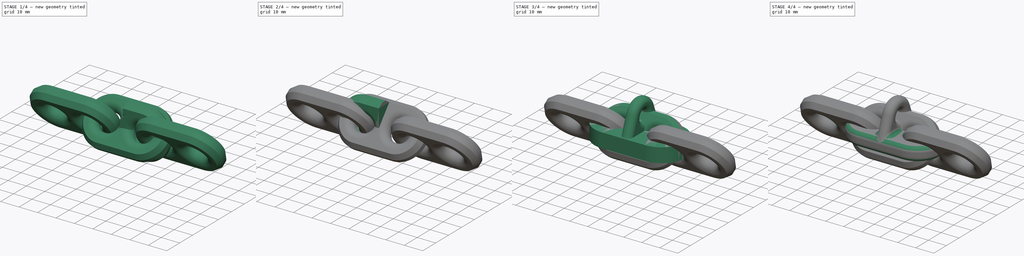
[diagram: build sequence overview — one tinted view per stage of 4, left to right]
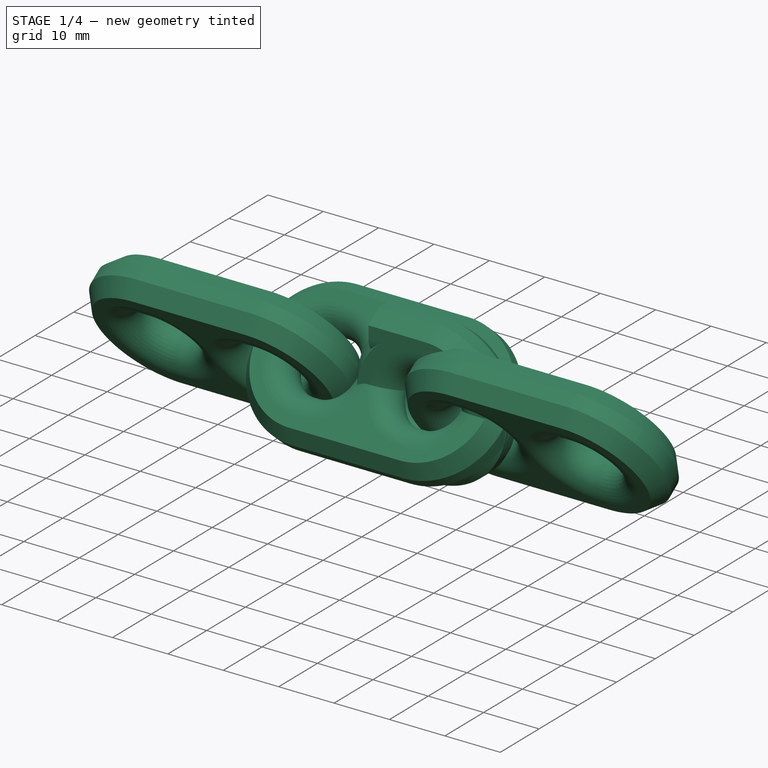
[diagram: stage 1 of 4 — iso view after this stage's code; geometry added in this stage tinted green]
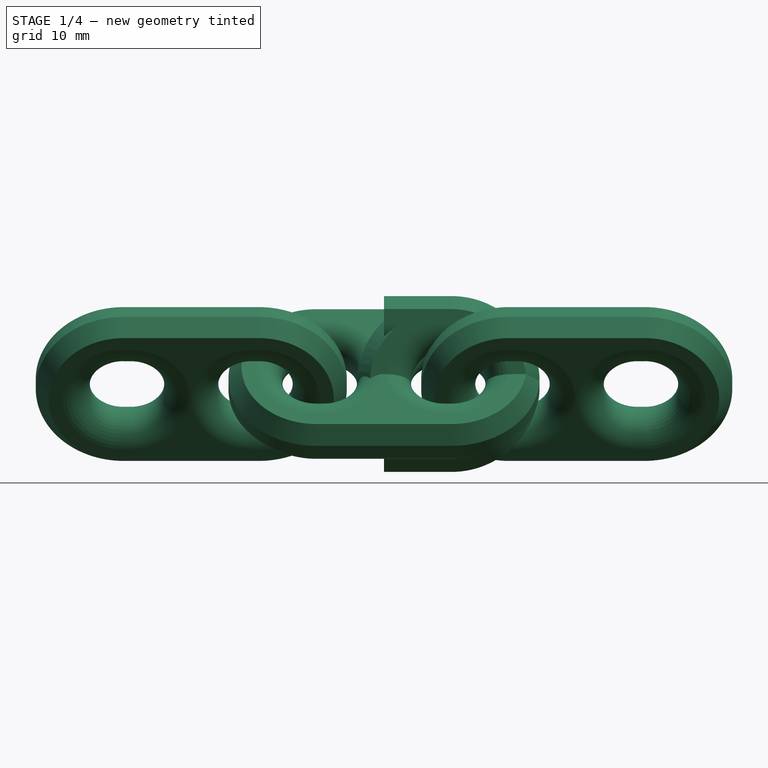
[diagram: stage 1 of 4 — front view after this stage's code; geometry added in this stage tinted green]
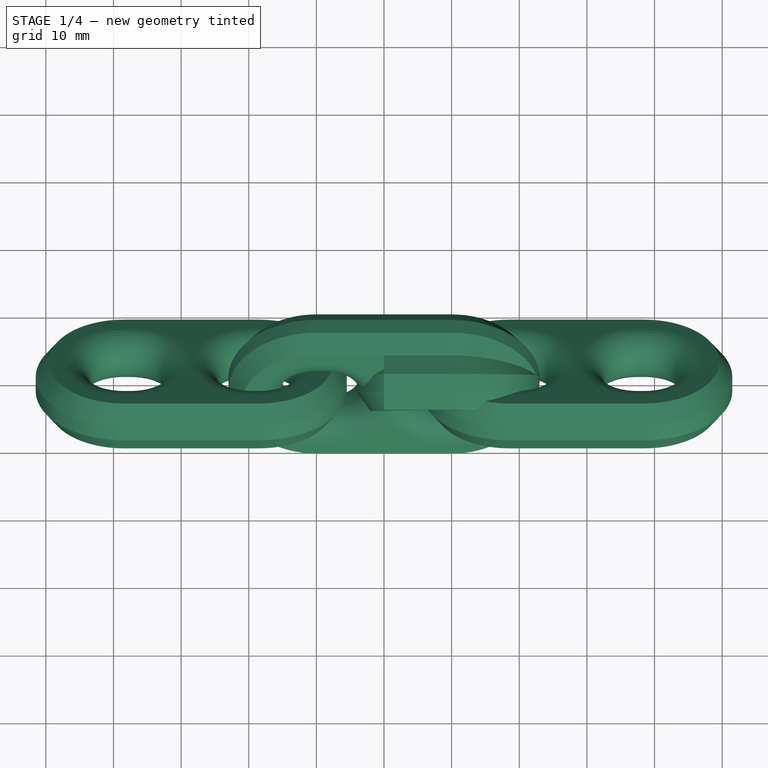
[diagram: stage 1 of 4 — top view after this stage's code; geometry added in this stage tinted green]
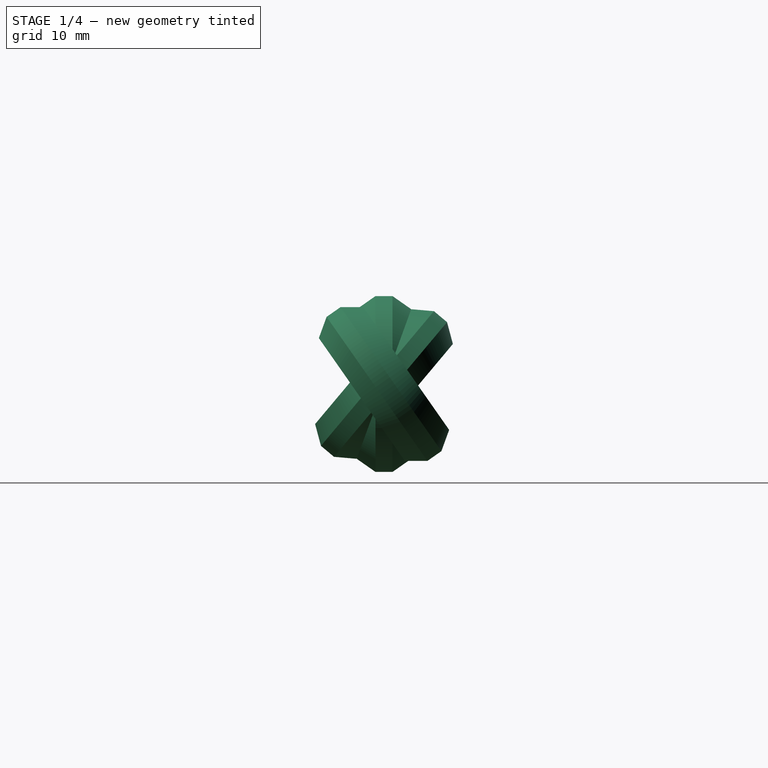
[diagram: stage 1 of 4 — right view after this stage's code; geometry added in this stage tinted green]
FCSTD DOCUMENT  (FreeCAD 0.21R33771 (Git))
Label: _FatChain
License: Creative Commons Attribution 4.0
LicenseURL: https://creativecommons.org/licenses/by/4.0/
objects: Sketcher::SketchObject×8, PartDesign::Pad×3, PartDesign::Body×3, Part::Feature×3, PartDesign::Fillet×2, Part::MultiFuse×2, PartDesign::AdditivePipe×2, Part::Fillet×1, PartDesign::Pocket×1, Part::Mirroring×1, Part::Compound×1
note: 35 computed .brp shape members not serialized (recipe doc carries the construction recipe); baked Part::Feature solids carry a one-line shape summary decoded from their .brp

FEATURE [Sketcher::SketchObject] Sketch015
  FullyConstrained = true
  MapMode = 5
  Placement = pos=(0,0,0) rot=(1,0,0;1.5708rad)
  Support = -> [XZ_Plane005]
  sketch-geometry (3):
    g0: ArcOfCircle CenterX=10 CenterY=0 CenterZ=0 NormalX=0 NormalY=0 NormalZ=1 AngleXU=0 Radius=9 StartAngle=4.71239 EndAngle=7.85398
    g1: LineSegment StartX=0 StartY=9 StartZ=0 EndX=10 EndY=9 EndZ=0
    g2: LineSegment StartX=0 StartY=-9 StartZ=0 EndX=10 EndY=-9 EndZ=0
  constraints (10):
    c: Coincident(g0,g1)
    c: Tangent(g1,g0)
    c: Horizontal(g2)
    c: PointOnObject(g1,g-2)
    c: PointOnObject(g2,g-2)
    c: DistanceX(g-1,g0) = 10
    c: Radius(g0) = 9
    c: Horizontal(g1)
    c: Tangent(g0,g2) = -1.5708
    c: PointOnObject(g0,g-1)
FEATURE [Sketcher::SketchObject] Sketch016
  ExternalGeometry = -> [Sketch015]
  FullyConstrained = true
  MapMode = 5
  Placement = pos=(0,0,0) rot=(0.57735,0.57735,0.57735;2.0944rad)
  Support = -> [YZ_Plane005]
  sketch-geometry (7):
    g0: ArcOfCircle CenterX=0 CenterY=9 CenterZ=0 NormalX=0 NormalY=0 NormalZ=1 AngleXU=0 Radius=4 StartAngle=3.14159 EndAngle=6.28319
    g1: LineSegment StartX=-4 StartY=9 StartZ=0 EndX=-4 EndY=11.0823 EndZ=0
    g2: LineSegment StartX=-1.2612 StartY=13 StartZ=0 EndX=1.2612 EndY=13 EndZ=0
    g3: LineSegment StartX=4 StartY=11.0823 StartZ=0 EndX=4 EndY=9 EndZ=0
    g4: ArcOfCircle CenterX=0 CenterY=9 CenterZ=0 NormalX=0 NormalY=0 NormalZ=1 AngleXU=0 Radius=4 StartAngle=1.5708 EndAngle=3.14159
    g5: LineSegment StartX=-1.2612 StartY=13 StartZ=0 EndX=-4 EndY=11.0823 EndZ=0
    g6: LineSegment StartX=1.2612 StartY=13 StartZ=0 EndX=4 EndY=11.0823 EndZ=0
  constraints (18):
    c: Coincident(g0,g-3)
    c: Tangent(g0,g1) = 1.5708
    c: Horizontal(g2)
    c: Tangent(g3,g0) = 1.5708
    c: Vertical(g3)
    c: Coincident(g4,g0)
    c: Coincident(g4,g0)
    c: Tangent(g4,g2)
    c: Radius(g0) = 4
    c: PointOnObject(g4,g-2)
    c: Coincident(g2,g5)
    c: Coincident(g1,g5)
    c: Coincident(g2,g6)
    c: Coincident(g3,g6)
    c: Symmetric(g3,g1,g-2)
    c: Angle(g5,g6) = 1.91986
    c: Equal(g6,g5)
    c: Tangent(g4,g5)
FEATURE [PartDesign::AdditivePipe] AdditivePipe003
  AuxilleryCurvelinear = true
  AuxillerySpineTangent = false
  Binormal = (0,0,0)
  Mode = 0
  Placement = pos=(0,0,0) rot=(0.57735,0.57735,0.57735;2.0944rad)
  Profile = -> Sketch016
  Refine = true
  Spine = -> Sketch015
  SpineTangent = false
  Transformation = 0
  Transition = 0
FEATURE [Sketcher::SketchObject] Sketch017
  FullyConstrained = true
  MapMode = 5
  Placement = pos=(0,0,0) rot=(1,0,0;1.5708rad)
  Support = -> [XZ_Plane005]
  sketch-geometry (1):
    g0: ArcOfCircle CenterX=9 CenterY=0 CenterZ=0 NormalX=0 NormalY=0 NormalZ=1 AngleXU=0 Radius=9 StartAngle=1.5708 EndAngle=4.71239
  constraints (5):
    c: PointOnObject(g0,g-1)
    c: Radius(g0) = 9
    c: Vertical(g0,g0)
    c: Vertical(g0,g0)
    c: PointOnObject(g-1,g0)
FEATURE [Sketcher::SketchObject] Sketch018
  AttachmentOffset = pos=(0,0,9) rot=(0,0,1;0rad)
  ExternalGeometry = -> [Sketch015]
  FullyConstrained = true
  MapMode = 5
  Placement = pos=(9,-2e-15,2e-15) rot=(0.57735,0.57735,0.57735;2.0944rad)
  Support = -> [YZ_Plane005]
  sketch-geometry (7):
    g0: ArcOfCircle CenterX=0 CenterY=9 CenterZ=0 NormalX=0 NormalY=0 NormalZ=1 AngleXU=0 Radius=4 StartAngle=3.14159 EndAngle=6.28319
    g1: LineSegment StartX=-4 StartY=9 StartZ=0 EndX=-4 EndY=11.0823 EndZ=0
    g2: LineSegment StartX=-1.2612 StartY=13 StartZ=0 EndX=1.2612 EndY=13 EndZ=0
    g3: LineSegment StartX=4 StartY=11.0823 StartZ=0 EndX=4 EndY=9 EndZ=0
    g4: ArcOfCircle CenterX=0 CenterY=9 CenterZ=0 NormalX=0 NormalY=0 NormalZ=1 AngleXU=0 Radius=4 StartAngle=1.5708 EndAngle=3.14159
    g5: LineSegment StartX=-1.2612 StartY=13 StartZ=0 EndX=-4 EndY=11.0823 EndZ=0
    g6: LineSegment StartX=1.2612 StartY=13 StartZ=0 EndX=4 EndY=11.0823 EndZ=0
  constraints (18):
    c: Coincident(g0,g-3)
    c: Tangent(g0,g1) = 1.5708
    c: Horizontal(g2)
    c: Tangent(g3,g0) = 1.5708
    c: Vertical(g3)
    c: Coincident(g4,g0)
    c: Coincident(g4,g0)
    c: Tangent(g4,g2)
    c: Radius(g0) = 4
    c: PointOnObject(g4,g-2)
    c: Coincident(g2,g5)
    c: Coincident(g1,g5)
    c: Coincident(g2,g6)
    c: Coincident(g3,g6)
    c: Symmetric(g3,g1,g-2)
    c: Angle(g5,g6) = 1.91986
    c: Equal(g6,g5)
    c: Tangent(g4,g5)
FEATURE [PartDesign::AdditivePipe] AdditivePipe004
  AuxilleryCurvelinear = true
  AuxillerySpineTangent = false
  BaseFeature = -> AdditivePipe003
  Binormal = (0,0,0)
  Mode = 0
  Placement = pos=(0,0,0) rot=(0.57735,0.57735,0.57735;2.0944rad)
  Profile = -> Sketch018
  Refine = true
  Spine = -> Sketch017
  SpineTangent = false
  Transformation = 0
  Transition = 0
FEATURE [Part::Feature] Fusion001
  Placement = pos=(28.5,0,0) rot=(1,0,0;0.610865rad)
  shape: bbox 46 x 19.31 x 23.5 mm, 22 faces (baked)
FEATURE [Part::Feature] Fusion002
  Placement = pos=(-28.5,0,0) rot=(1,0,0;0.610865rad)
  shape: bbox 46 x 19.31 x 23.5 mm, 22 faces (baked)
FEATURE [Part::Feature] Fusion004
  Placement = pos=(0,0,0) rot=(1,0,0;5.58505rad)
  shape: bbox 46 x 20.6 x 22.7 mm, 22 faces (baked)
FEATURE [Part::Compound] Compound  label="3xFatChain"
  Links = -> [Fusion001,Fusion002,Fusion004]
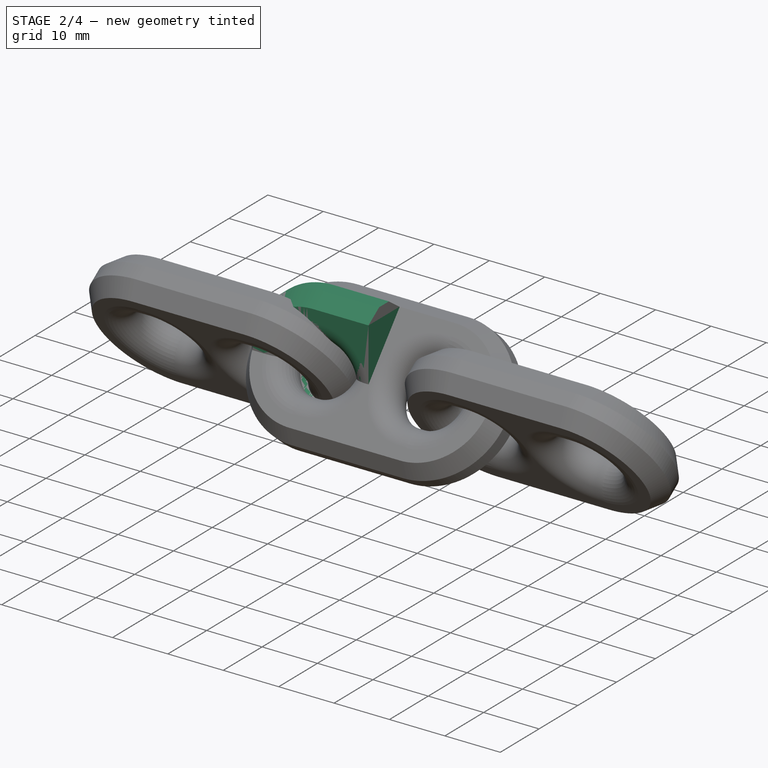
[diagram: stage 2 of 4 — iso view after this stage's code; geometry added in this stage tinted green]
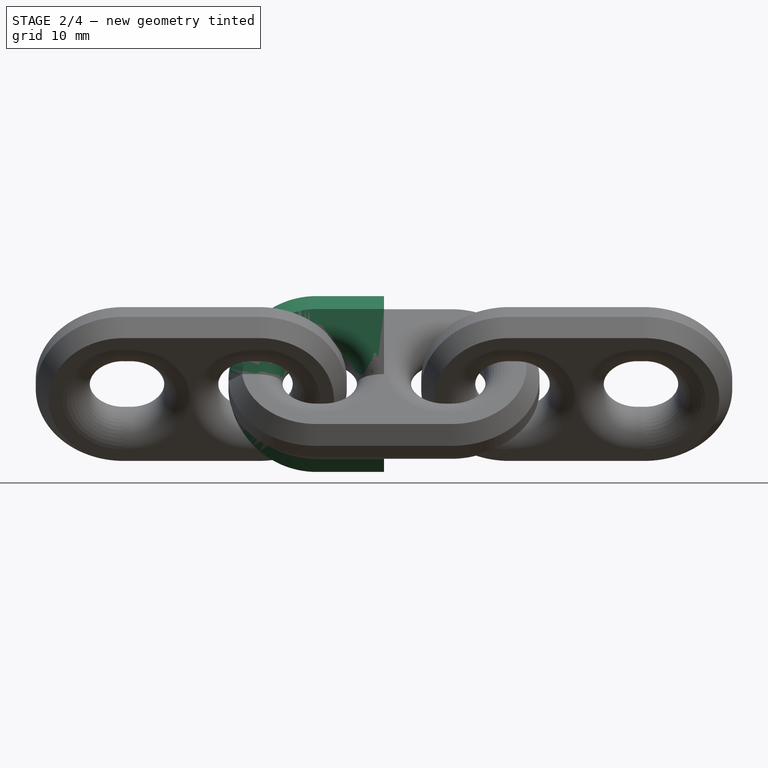
[diagram: stage 2 of 4 — front view after this stage's code; geometry added in this stage tinted green]
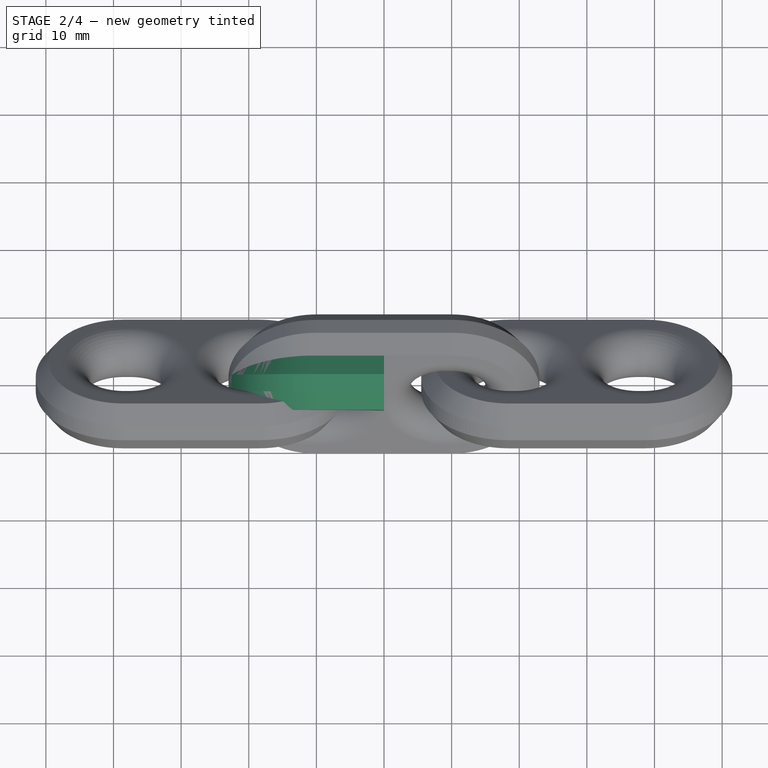
[diagram: stage 2 of 4 — top view after this stage's code; geometry added in this stage tinted green]
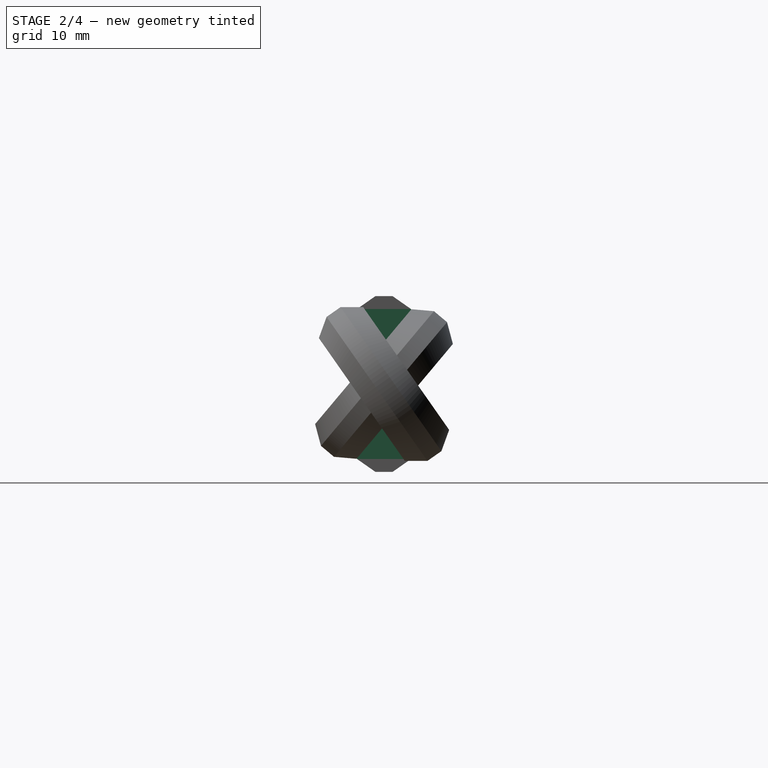
[diagram: stage 2 of 4 — right view after this stage's code; geometry added in this stage tinted green]
FEATURE [Sketcher::SketchObject] Sketch019
  FullyConstrained = true
  MapMode = 5
  Placement = pos=(0,0,0) rot=(1,0,0;1.5708rad)
  Support = -> [XZ_Plane005]
  sketch-geometry (7):
    g0: LineSegment StartX=0 StartY=10 StartZ=0 EndX=3.5 EndY=10 EndZ=0
    g1: LineSegment StartX=3.5 StartY=10 StartZ=0 EndX=3.5 EndY=8.35165 EndZ=0
    g2: LineSegment StartX=3.5 StartY=-10 StartZ=0 EndX=0 EndY=-10 EndZ=0
    g3: LineSegment StartX=0 StartY=-10 StartZ=0 EndX=-2 EndY=0 EndZ=0
    g4: LineSegment StartX=0 StartY=10 StartZ=0 EndX=-2 EndY=0 EndZ=0
    g5: LineSegment StartX=3.5 StartY=-8.35165 StartZ=0 EndX=3.5 EndY=-10 EndZ=0
    g6: ArcOfCircle CenterX=9 CenterY=0 CenterZ=0 NormalX=0 NormalY=0 NormalZ=1 AngleXU=0 Radius=10 StartAngle=2.15316 EndAngle=4.13002
  constraints (21):
    c: PointOnObject(g0,g-2)
    c: Coincident(g0,g1)
    c: Coincident(g3,g2)
    c: PointOnObject(g3,g-1)
    c: Coincident(g4,g0)
    c: Coincident(g4,g3)
    c: Horizontal(g0)
    c: Horizontal(g2)
    c: Symmetric(g2,g0,g-1)
    c: Vertical(g1)
    c: Coincident(g5,g2)
    c: Vertical(g5)
    c: PointOnObject(g6,g-1)
    c: Coincident(g6,g1)
    c: Coincident(g6,g5)
    c: DistanceX(g-1,g6) = 9
    c: Radius(g6) = 10
    c: Equal(g5,g1)
    c: DistanceY(g2,g0) = 20
    c: DistanceX(g3,g-1) = 2
    c: DistanceX(g2,g2) = 3.5
FEATURE [PartDesign::Pad] Pad002
  BaseFeature = -> AdditivePipe004
  Direction = (0,-1,2e-16)
  Length = 8
  Length2 = 10
  Midplane = true
  Placement = pos=(0,0,0) rot=(0.57735,0.57735,0.57735;2.0944rad)
  Profile = -> Sketch019
  ReferenceAxis = -> Sketch019 [N_Axis]
  Refine = true
  Type = 0
FEATURE [Sketcher::SketchObject] Sketch020
  FullyConstrained = true
  MapMode = 5
  Placement = pos=(0,0,0) rot=(1,0,0;1.5708rad)
  Support = -> [XZ_Plane005]
  sketch-geometry (4):
    g0: LineSegment StartX=-5 StartY=15 StartZ=0 EndX=0 EndY=15 EndZ=0
    g1: LineSegment StartX=0 StartY=15 StartZ=0 EndX=0 EndY=-15 EndZ=0
    g2: LineSegment StartX=0 StartY=-15 StartZ=0 EndX=-5 EndY=-15 EndZ=0
    g3: LineSegment StartX=-5 StartY=-15 StartZ=0 EndX=-5 EndY=15 EndZ=0
  constraints (11):
    c: Coincident(g0,g1)
    c: Coincident(g1,g2)
    c: Coincident(g2,g3)
    c: Coincident(g3,g0)
    c: Horizontal(g0)
    c: Horizontal(g2)
    c: Vertical(g3)
    c: PointOnObject(g1,g-2)
    c: Symmetric(g1,g0,g-1)
    c: DistanceY(g3,g3) = 30
    c: DistanceX(g0,g0) = 5
FEATURE [PartDesign::Pocket] Pocket003
  BaseFeature = -> Pad002
  Direction = (0,1,-2e-16)
  Length = 5
  Length2 = 5
  Midplane = true
  Placement = pos=(0,0,0) rot=(0.57735,0.57735,0.57735;2.0944rad)
  Profile = -> Sketch020
  ReferenceAxis = -> Sketch020 [N_Axis]
  Refine = true
  Type = 1
FEATURE [PartDesign::Body] Body005  label="FatLink"
  Group = -> [Sketch015,Sketch016,AdditivePipe003,Sketch017,Sketch018,AdditivePipe004,Sketch019,Pad002,Sketch020,Pocket003]
  Origin = -> Origin005
  Tip = -> Pocket003
FEATURE [Part::Mirroring] Part__Mirroring  label="FatLink (Mirror #1)"
  Base = (0,0,0)
  Normal = (1,0,0)
  Source = -> Body005
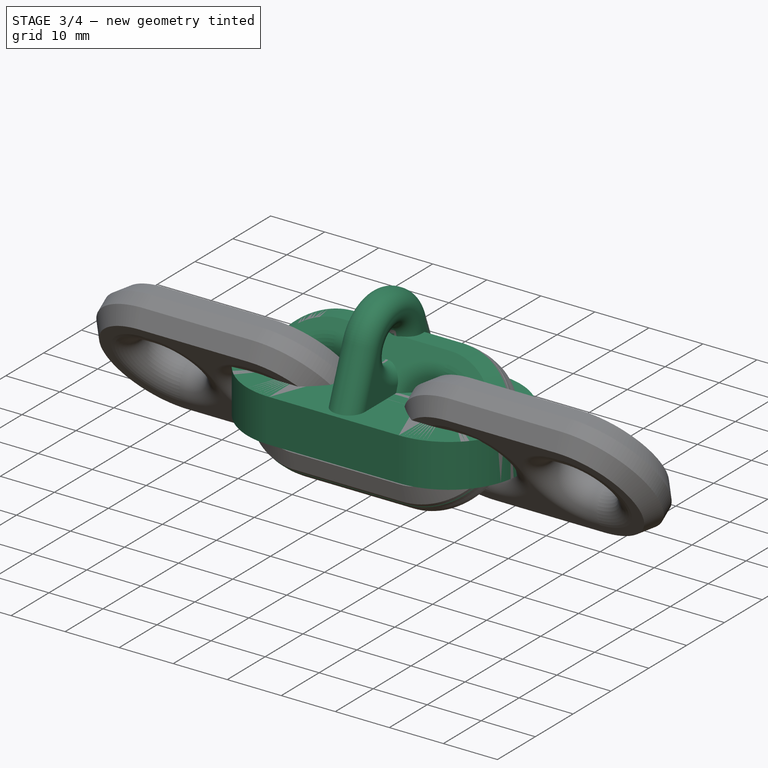
[diagram: stage 3 of 4 — iso view after this stage's code; geometry added in this stage tinted green]
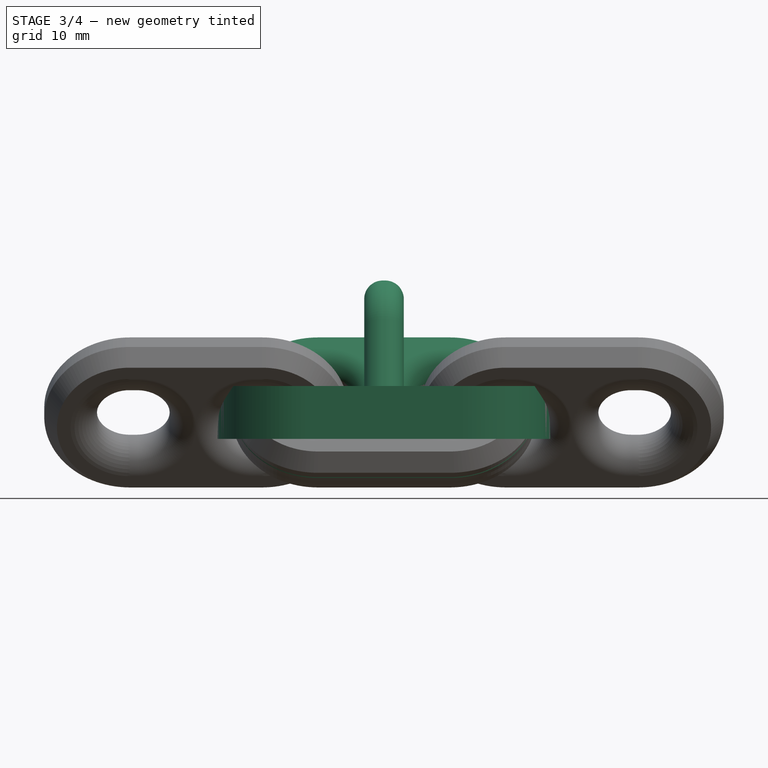
[diagram: stage 3 of 4 — front view after this stage's code; geometry added in this stage tinted green]
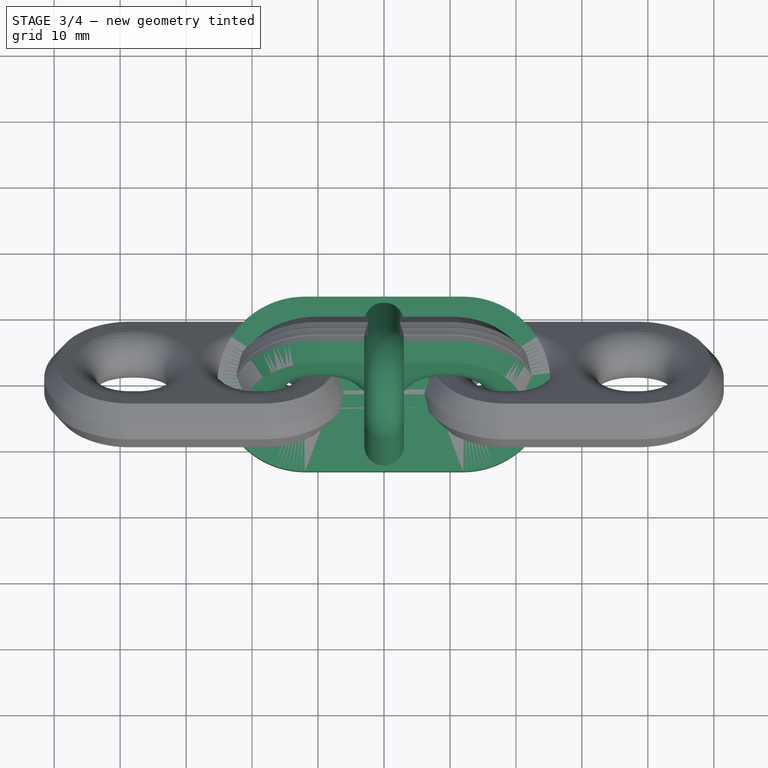
[diagram: stage 3 of 4 — top view after this stage's code; geometry added in this stage tinted green]
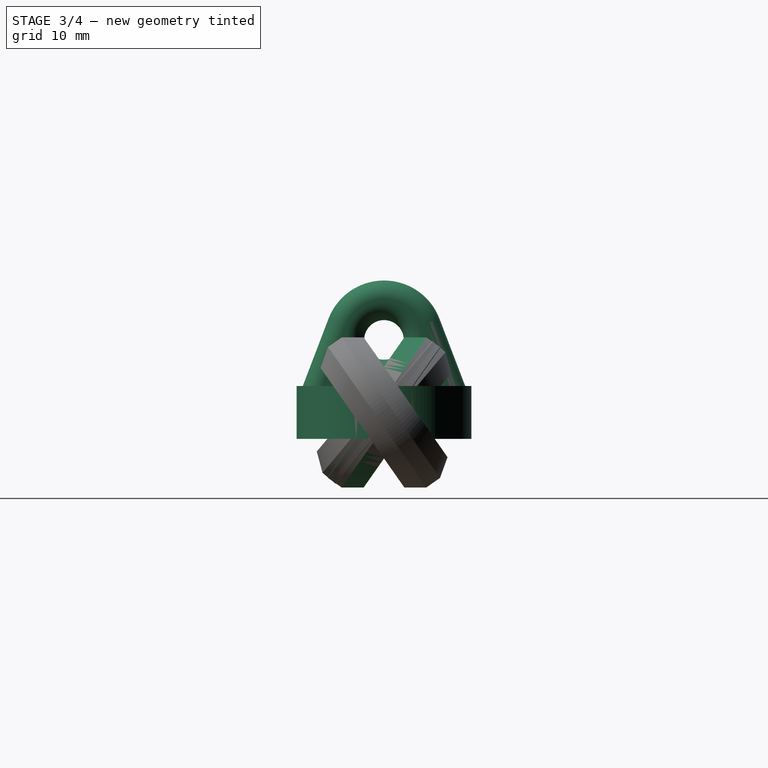
[diagram: stage 3 of 4 — right view after this stage's code; geometry added in this stage tinted green]
FEATURE [Sketcher::SketchObject] Sketch021
  FullyConstrained = true
  MapMode = 5
  Support = -> [XY_Plane006]
  sketch-geometry (7):
    g0: Circle CenterX=-12 CenterY=0 CenterZ=0 NormalX=0 NormalY=0 NormalZ=1 AngleXU=0 Radius=5.25
    g1: Circle CenterX=12 CenterY=0 CenterZ=0 NormalX=0 NormalY=0 NormalZ=1 AngleXU=0 Radius=5.25
    g2: ArcOfCircle CenterX=-12 CenterY=0 CenterZ=0 NormalX=0 NormalY=0 NormalZ=1 AngleXU=0 Radius=13.25 StartAngle=1.5708 EndAngle=4.71239
    g3: ArcOfCircle CenterX=12 CenterY=0 CenterZ=0 NormalX=0 NormalY=0 NormalZ=1 AngleXU=0 Radius=13.25 StartAngle=4.71239 EndAngle=7.85398
    g4: LineSegment StartX=-12 StartY=-13.25 StartZ=0 EndX=12 EndY=-13.25 EndZ=0
    g5: LineSegment StartX=12 StartY=13.25 StartZ=0 EndX=-12 EndY=13.25 EndZ=0
    g6: LineSegment StartX=-12 StartY=-5.25 StartZ=0 EndX=-12 EndY=-13.25 EndZ=0
  constraints (17):
    c: PointOnObject(g0,g-1)
    c: Symmetric(g1,g0,g-2)
    c: Equal(g1,g0)
    c: Diameter(g1) = 10.5
    c: DistanceX(g0,g1) = 24
    c: Tangent(g2,g4) = -1.5708
    c: Tangent(g4,g3) = -1.5708
    c: Tangent(g3,g5) = -1.5708
    c: Tangent(g5,g2) = -1.5708
    c: Equal(g2,g3)
    c: Coincident(g3,g1)
    c: Coincident(g2,g0)
    c: PointOnObject(g6,g0)
    c: Coincident(g6,g2)
    c: Vertical(g6)
    c: DistanceY(g6,g6) = 8
    c: DistanceY(g2,g2) = 26.5
FEATURE [PartDesign::Pad] Pad003
  Direction = (0,0,1)
  Length = 8
  Length2 = 10
  Midplane = true
  Profile = -> Sketch021
  ReferenceAxis = -> Sketch021 [N_Axis]
  Refine = true
  Type = 0
FEATURE [PartDesign::Body] Body006  label="FatLinkT_1"
  Group = -> [Sketch021,Pad003,Fillet001]
  Origin = -> Origin006
  Tip = -> Fillet001
FEATURE [Sketcher::SketchObject] Sketch022
  FullyConstrained = true
  MapMode = 5
  Placement = pos=(0,0,0) rot=(0.57735,0.57735,0.57735;2.0944rad)
  Support = -> [YZ_Plane007]
  expr: Constraints[2] = Sketch021.Constraints[16]
  sketch-geometry (12):
    g0: LineSegment StartX=13.25 StartY=0 StartZ=0 EndX=-13.25 EndY=0 EndZ=0
    g1: ArcOfCircle CenterX=0 CenterY=11 CenterZ=0 NormalX=0 NormalY=0 NormalZ=1 AngleXU=0 Radius=9 StartAngle=0.365406 EndAngle=2.77619
    g2: Circle CenterX=0 CenterY=11 CenterZ=0 NormalX=0 NormalY=0 NormalZ=1 AngleXU=0 Radius=3
    g3: GeomPoint X=0 Y=8 Z=0
    g4: LineSegment StartX=-13.0519 StartY=2.07198 StartZ=0 EndX=-8.40581 EndY=14.216 EndZ=0
    g5: LineSegment StartX=8.40581 StartY=14.216 StartZ=0 EndX=13.0519 EndY=2.07198 EndZ=0
    g6: GeomPoint X=0 Y=14 Z=0
    g7: GeomPoint X=0 Y=20 Z=0
    g8: LineSegment StartX=-13.25 StartY=0 StartZ=0 EndX=-13.25 EndY=1 EndZ=0
    g9: LineSegment StartX=13.25 StartY=0 StartZ=0 EndX=13.25 EndY=1 EndZ=0
    g10: ArcOfCircle CenterX=10.25 CenterY=1 CenterZ=0 NormalX=0 NormalY=0 NormalZ=1 AngleXU=0 Radius=3 StartAngle=0 EndAngle=0.365406
    g11: ArcOfCircle CenterX=-10.25 CenterY=1 CenterZ=0 NormalX=0 NormalY=0 NormalZ=1 AngleXU=0 Radius=3 StartAngle=2.77619 EndAngle=3.14159
  constraints (28):
    c: Symmetric(g0,g0,g-2)
    c: PointOnObject(g-1,g0)
    c: DistanceX(g0,g0) = 26.5
    c: PointOnObject(g1,g-2)
    c: Coincident(g2,g1)
    c: Diameter(g2) = 6
    c: PointOnObject(g3,g2)
    c: PointOnObject(g3,g-2)
    c: DistanceY(g0,g3) = 8
    c: Tangent(g5,g1) = 1.5708
    c: Tangent(g4,g1) = 1.5708
    c: PointOnObject(g6,g2)
    c: PointOnObject(g7,g1)
    c: PointOnObject(g7,g-2)
    c: PointOnObject(g6,g-2)
    c: DistanceY(g6,g7) = 6
    c: Coincident(g8,g0)
    c: Vertical(g8)
    c: Coincident(g9,g0)
    c: Vertical(g9)
    c: Equal(g8,g9)
    c: Equal(g10,g11)
    c: Radius(g10) = 3
    c: Tangent(g10,g5) = 1.5708
    c: Tangent(g11,g4) = 1.5708
    c: Tangent(g11,g8) = 1.5708
    c: Tangent(g10,g9) = -1.5708
    c: DistanceY(g8,g8) = 1
FEATURE [PartDesign::Pad] Pad004
  Direction = (1,-2e-16,3e-16)
  Length = 6
  Length2 = 10
  Midplane = true
  Placement = pos=(0,0,0) rot=(0.57735,0.57735,0.57735;2.0944rad)
  Profile = -> Sketch022
  ReferenceAxis = -> Sketch022 [N_Axis]
  Refine = true
  Type = 0
FEATURE [PartDesign::Fillet] Fillet002
  Base = -> Pad004 [Edge18,Edge19,Edge26,Edge27]
  BaseFeature = -> Pad004
  Placement = pos=(0,0,0) rot=(0.57735,0.57735,0.57735;2.0944rad)
  Radius = 2.8
  Refine = true
  SupportTransform = false
  UseAllEdges = false
FEATURE [Part::MultiFuse] Fusion  label="Fat_Link"
  Placement = pos=(0,0,0) rot=(-1,0,0;0.610865rad)
  Refine = true
  Shapes = -> [Part__Mirroring,Body005]
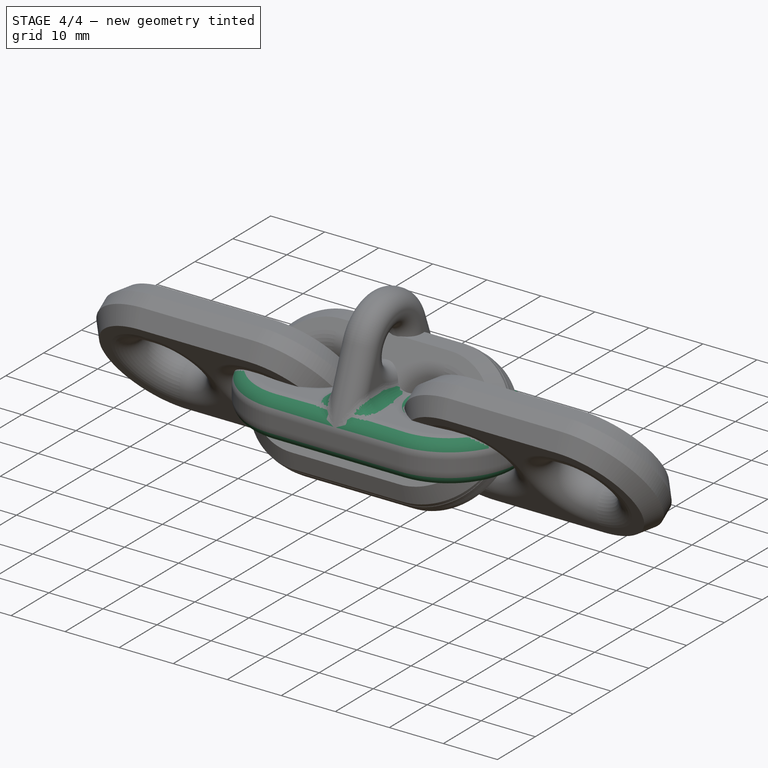
[diagram: stage 4 of 4 — iso view after this stage's code; geometry added in this stage tinted green]
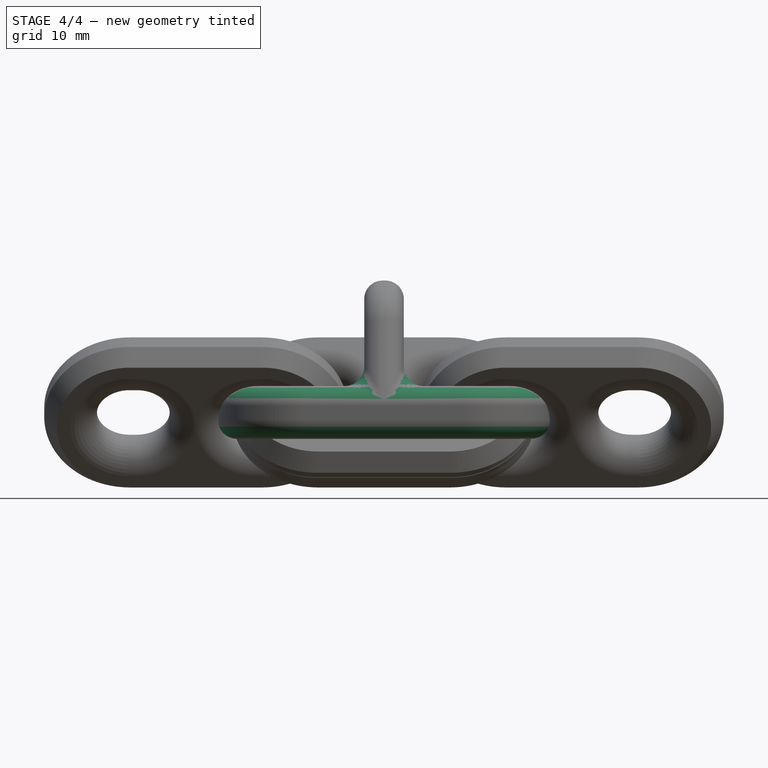
[diagram: stage 4 of 4 — front view after this stage's code; geometry added in this stage tinted green]
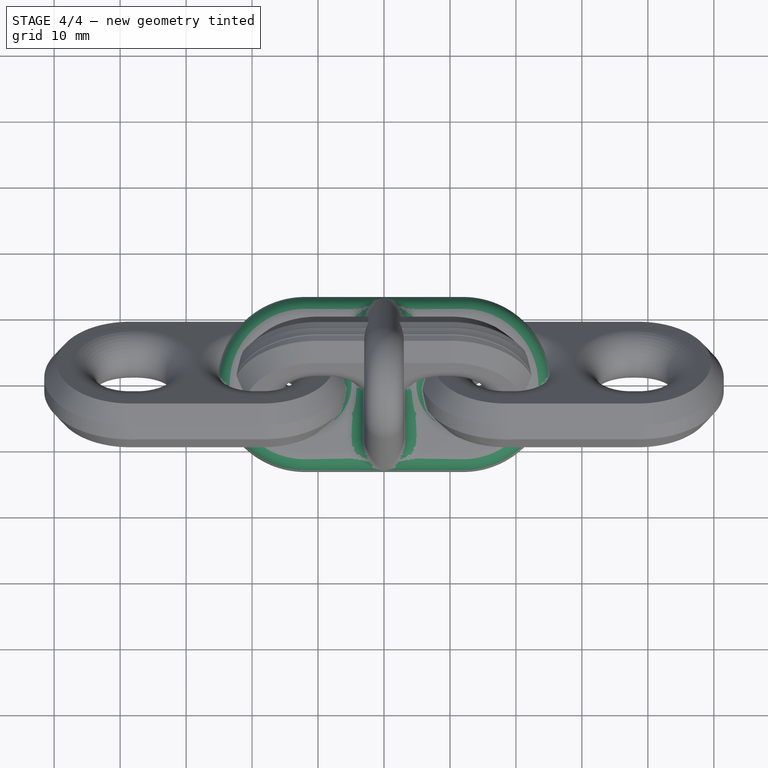
[diagram: stage 4 of 4 — top view after this stage's code; geometry added in this stage tinted green]
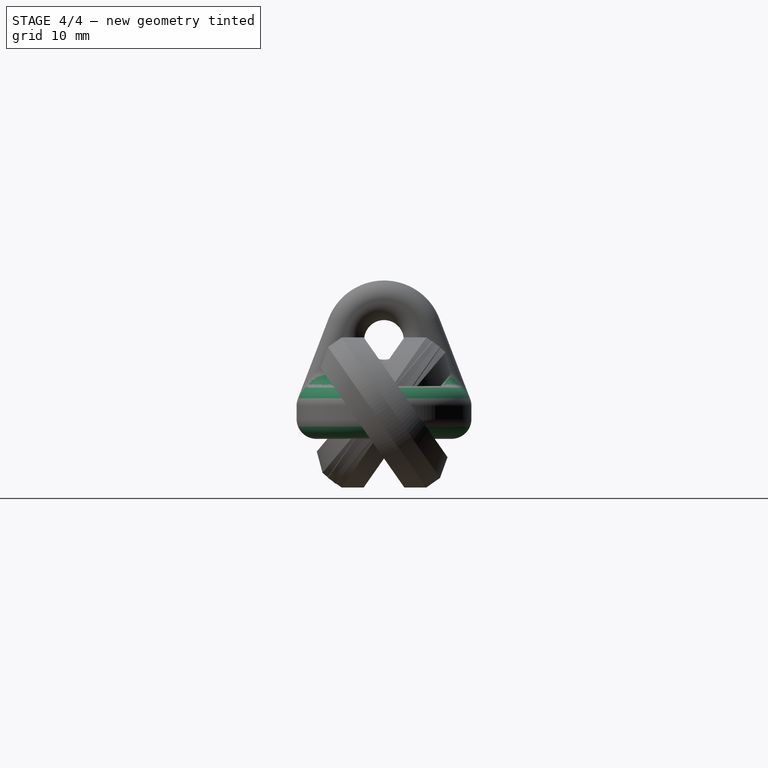
[diagram: stage 4 of 4 — right view after this stage's code; geometry added in this stage tinted green]
FEATURE [PartDesign::Fillet] Fillet001
  Base = -> Pad003 [Edge10,Edge3,Face6,Face5]
  BaseFeature = -> Pad003
  Radius = 3
  Refine = true
  SupportTransform = false
  UseAllEdges = false
FEATURE [PartDesign::Body] Body007  label="FatLinkT_2"
  Group = -> [Sketch022,Pad004,Fillet002]
  Origin = -> Origin007
  Tip = -> Fillet002
FEATURE [Part::MultiFuse] Fusion003
  Shapes = -> [Body006,Body007]
FEATURE [Part::Fillet] Fillet003  label="Fat_T-Link"
  Base = -> Fusion003
  Edges = 2 edges r=3: [Edge44,Edge63]
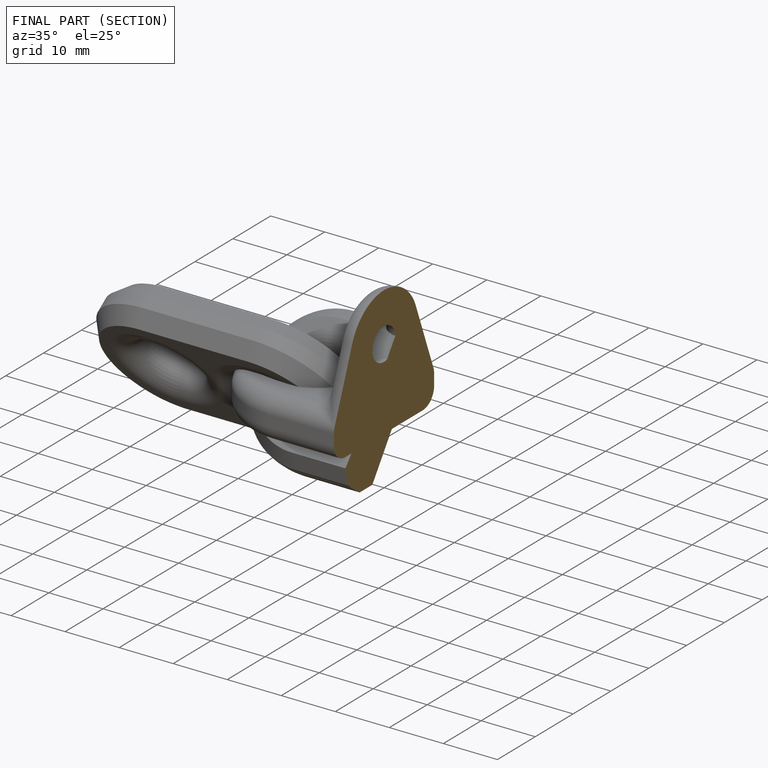
[diagram: finished part — half-section view (interior)]
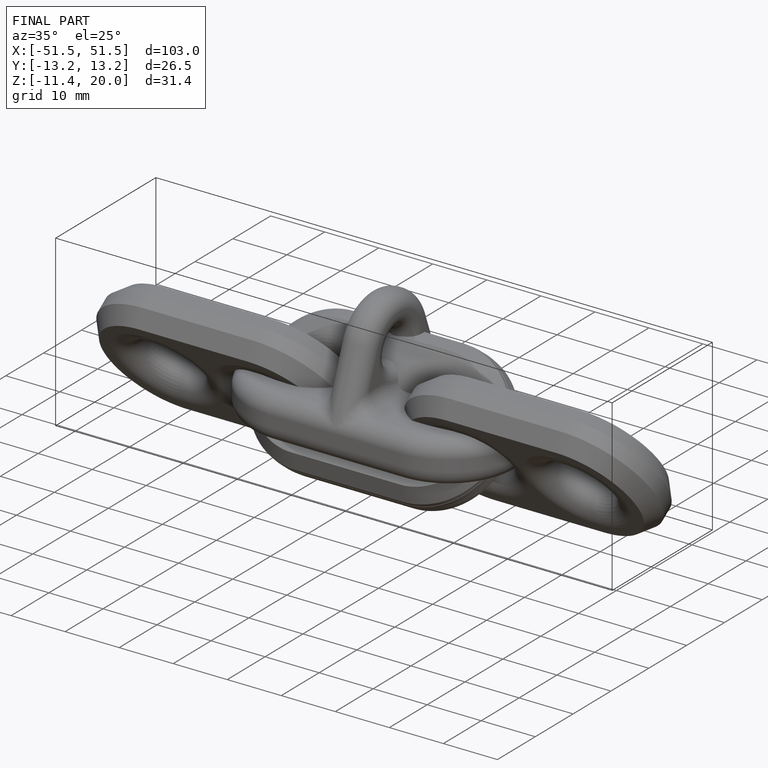
[diagram: finished part — iso view with bounding-box wireframe]
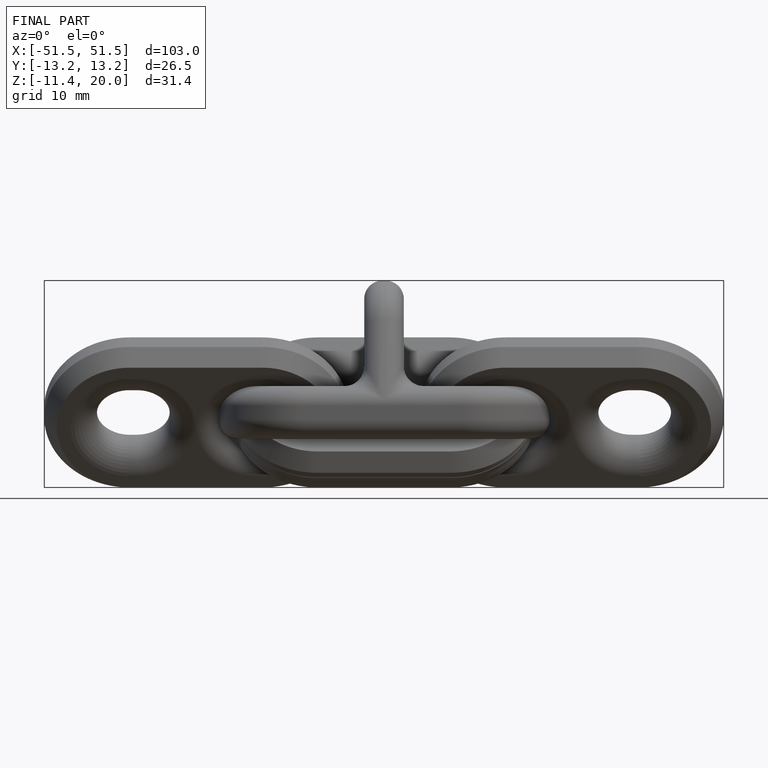
[diagram: finished part — front view with bounding-box wireframe]
